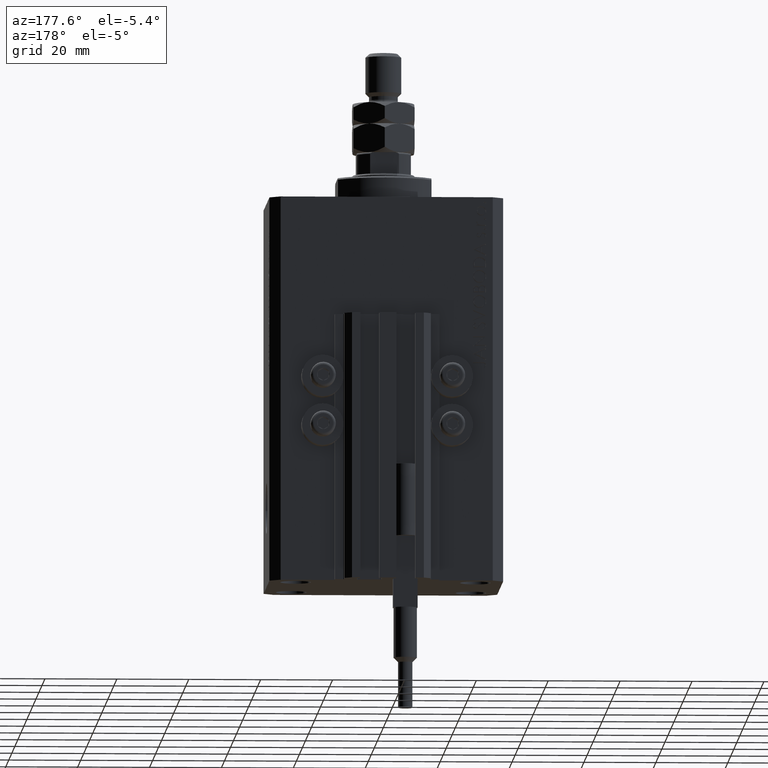
[diagram: clean part render]
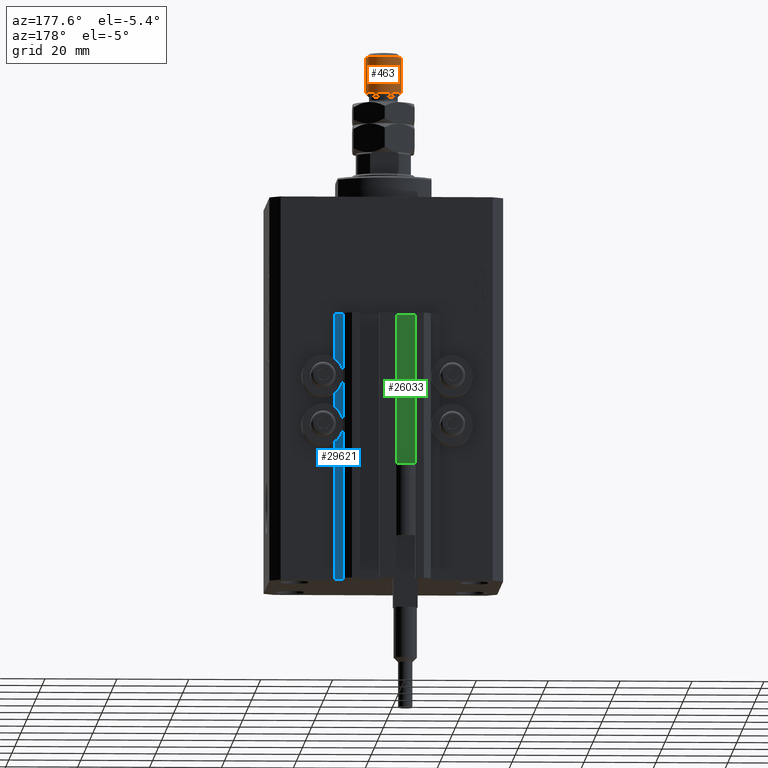
[diagram: same view with three faces highlighted in distinct colors, each labeled with its STEP entity id]
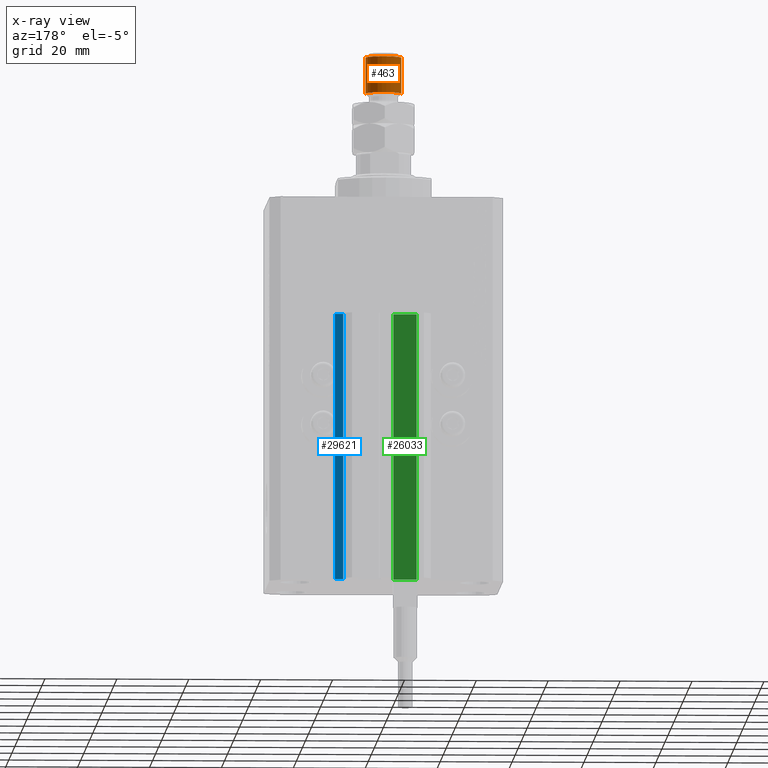
[diagram: x-ray of the same camera — body ghosted, the three highlighted faces saturated]
A machine part, auxiliary view with three faces highlighted in distinct colors.
The next image is the same camera in x-ray (body ghosted, the three faces saturated) — at least one of them is partly hidden behind the body in this view.
Their STEP definitions:

[orange] entity #463 — the highlighted cylindrical surface (edge-blend (fillet) strip) has radius 5 mm, axis along (-0, -0, -1).
#463 = ADVANCED_FACE ( 'NONE', ( #27732 ), #43000, .T. ) ;
#582 = EDGE_CURVE ( 'NONE', #14143, #31535, #3618, .T. ) ;
#911 = CARTESIAN_POINT ( 'NONE',  ( -5.000000000000000000, 0.000000000000000000, 17.00000000000000355 ) ) ;
#3618 = LINE ( 'NONE', #45229, #20893 ) ;
#5179 = DIRECTION ( 'NONE',  ( -1.000000000000000000, 0.000000000000000000, 0.000000000000000000 ) ) ;
#6138 = DIRECTION ( 'NONE',  ( -0.000000000000000000, -0.000000000000000000, 1.000000000000000000 ) ) ;
#6488 = AXIS2_PLACEMENT_3D ( 'NONE', #43250, #8934, #5179 ) ;
#7622 = DIRECTION ( 'NONE',  ( -0.000000000000000000, -0.000000000000000000, -1.000000000000000000 ) ) ;
#7648 = AXIS2_PLACEMENT_3D ( 'NONE', #38831, #7780, #27583 ) ;
#7780 = DIRECTION ( 'NONE',  ( 0.000000000000000000, 0.000000000000000000, -1.000000000000000000 ) ) ;
#8934 = DIRECTION ( 'NONE',  ( -0.000000000000000000, -0.000000000000000000, -1.000000000000000000 ) ) ;
#9679 = CARTESIAN_POINT ( 'NONE',  ( 5.000000000000000000, 6.123233995736766282E-16, 28.00000000000000000 ) ) ;
#10754 = ORIENTED_EDGE ( 'NONE', *, *, #11870, .T. ) ;
#10810 = CARTESIAN_POINT ( 'NONE',  ( 5.000000000000000000, 6.123233995736766282E-16, 26.99999999999998934 ) ) ;
#11053 = ORIENTED_EDGE ( 'NONE', *, *, #582, .F. ) ;
#11870 = EDGE_CURVE ( 'NONE', #38661, #45958, #28237, .T. ) ;
#14143 = VERTEX_POINT ( 'NONE', #42311 ) ;
#17284 = CARTESIAN_POINT ( 'NONE',  ( 5.000000000000000000, 6.123233995736766282E-16, 17.00000000000000355 ) ) ;
#20893 = VECTOR ( 'NONE', #7622, 1000.000000000000000 ) ;
#21901 = CARTESIAN_POINT ( 'NONE',  ( 0.000000000000000000, 0.000000000000000000, 17.00000000000000355 ) ) ;
#22851 = CIRCLE ( 'NONE', #7648, 5.000000000000000000 ) ;
#24139 = AXIS2_PLACEMENT_3D ( 'NONE', #21901, #6138, #48225 ) ;
#24581 = ORIENTED_EDGE ( 'NONE', *, *, #30052, .T. ) ;
#24996 = VECTOR ( 'NONE', #31975, 1000.000000000000000 ) ;
#27583 = DIRECTION ( 'NONE',  ( 1.000000000000000000, 0.000000000000000000, 0.000000000000000000 ) ) ;
#27732 = FACE_OUTER_BOUND ( 'NONE', #28163, .T. ) ;
#28163 = EDGE_LOOP ( 'NONE', ( #24581, #10754, #45573, #11053 ) ) ;
#28237 = LINE ( 'NONE', #9679, #24996 ) ;
#30052 = EDGE_CURVE ( 'NONE', #14143, #38661, #22851, .T. ) ;
#31535 = VERTEX_POINT ( 'NONE', #911 ) ;
#31975 = DIRECTION ( 'NONE',  ( -0.000000000000000000, -0.000000000000000000, -1.000000000000000000 ) ) ;
#38661 = VERTEX_POINT ( 'NONE', #10810 ) ;
#38831 = CARTESIAN_POINT ( 'NONE',  ( 0.000000000000000000, 0.000000000000000000, 26.99999999999998934 ) ) ;
#42311 = CARTESIAN_POINT ( 'NONE',  ( -5.000000000000000000, 0.000000000000000000, 26.99999999999998934 ) ) ;
#43000 = CYLINDRICAL_SURFACE ( 'NONE', #6488, 5.000000000000000000 ) ;
#43250 = CARTESIAN_POINT ( 'NONE',  ( 0.000000000000000000, 0.000000000000000000, 28.00000000000000000 ) ) ;
#45229 = CARTESIAN_POINT ( 'NONE',  ( -5.000000000000000000, 0.000000000000000000, 28.00000000000000000 ) ) ;
#45573 = ORIENTED_EDGE ( 'NONE', *, *, #47761, .T. ) ;
#45958 = VERTEX_POINT ( 'NONE', #17284 ) ;
#47761 = EDGE_CURVE ( 'NONE', #45958, #31535, #48907, .T. ) ;
#48225 = DIRECTION ( 'NONE',  ( 1.000000000000000000, 0.000000000000000000, 0.000000000000000000 ) ) ;
#48907 = CIRCLE ( 'NONE', #24139, 5.000000000000000000 ) ;

[blue] entity #29621 — the highlighted planar face has unit normal (0, 1, 0).
#939 = PLANE ( 'NONE',  #33259 ) ;
#1420 = CARTESIAN_POINT ( 'NONE',  ( 14.49999999999999822, 24.99999999999950617, -107.0000000000000000 ) ) ;
#1910 = VERTEX_POINT ( 'NONE', #24848 ) ;
#2382 = EDGE_CURVE ( 'NONE', #12589, #47809, #45251, .T. ) ;
#7644 = CARTESIAN_POINT ( 'NONE',  ( 14.49999999999999822, 24.99999999999950617, -107.0000000000000000 ) ) ;
#9452 = CARTESIAN_POINT ( 'NONE',  ( 14.49999999999999822, 24.99999999999950617, -107.0000000000000000 ) ) ;
#11755 = VECTOR ( 'NONE', #36989, 1000.000000000000000 ) ;
#12358 = EDGE_LOOP ( 'NONE', ( #12865, #48025, #23864, #37923 ) ) ;
#12589 = VERTEX_POINT ( 'NONE', #1420 ) ;
#12865 = ORIENTED_EDGE ( 'NONE', *, *, #21682, .F. ) ;
#13207 = FACE_OUTER_BOUND ( 'NONE', #12358, .T. ) ;
#16225 = CARTESIAN_POINT ( 'NONE',  ( 14.49999999999999822, 24.99999999999950617, -107.0000000000000000 ) ) ;
#19333 = CARTESIAN_POINT ( 'NONE',  ( 12.20000000000000284, 24.99999999999950617, -33.00000000000000000 ) ) ;
#20237 = DIRECTION ( 'NONE',  ( 0.000000000000000000, 1.000000000000000000, -0.000000000000000000 ) ) ;
#21682 = EDGE_CURVE ( 'NONE', #47809, #22660, #47709, .T. ) ;
#22660 = VERTEX_POINT ( 'NONE', #19333 ) ;
#23864 = ORIENTED_EDGE ( 'NONE', *, *, #33536, .T. ) ;
#24179 = LINE ( 'NONE', #40187, #33563 ) ;
#24848 = CARTESIAN_POINT ( 'NONE',  ( 12.20000000000000284, 24.99999999999950617, -107.0000000000000000 ) ) ;
#24936 = VECTOR ( 'NONE', #37951, 1000.000000000000000 ) ;
#28684 = DIRECTION ( 'NONE',  ( 0.000000000000000000, 0.000000000000000000, 1.000000000000000000 ) ) ;
#28694 = CARTESIAN_POINT ( 'NONE',  ( 14.49999999999999822, 24.99999999999950617, -33.00000000000000000 ) ) ;
#29621 = ADVANCED_FACE ( 'NONE', ( #13207 ), #939, .T. ) ;
#30322 = VECTOR ( 'NONE', #44192, 1000.000000000000000 ) ;
#32156 = CARTESIAN_POINT ( 'NONE',  ( 14.49999999999999822, 24.99999999999950617, -33.00000000000000000 ) ) ;
#33259 = AXIS2_PLACEMENT_3D ( 'NONE', #16225, #20237, #39514 ) ;
#33536 = EDGE_CURVE ( 'NONE', #12589, #1910, #43781, .T. ) ;
#33563 = VECTOR ( 'NONE', #28684, 1000.000000000000000 ) ;
#36989 = DIRECTION ( 'NONE',  ( -1.000000000000000000, 0.000000000000000000, 0.000000000000000000 ) ) ;
#37923 = ORIENTED_EDGE ( 'NONE', *, *, #40639, .T. ) ;
#37951 = DIRECTION ( 'NONE',  ( 0.000000000000000000, 0.000000000000000000, 1.000000000000000000 ) ) ;
#39514 = DIRECTION ( 'NONE',  ( 0.000000000000000000, 0.000000000000000000, 1.000000000000000000 ) ) ;
#40187 = CARTESIAN_POINT ( 'NONE',  ( 12.20000000000000284, 24.99999999999950617, -107.0000000000000000 ) ) ;
#40639 = EDGE_CURVE ( 'NONE', #1910, #22660, #24179, .T. ) ;
#43781 = LINE ( 'NONE', #9452, #11755 ) ;
#44192 = DIRECTION ( 'NONE',  ( -1.000000000000000000, 0.000000000000000000, 0.000000000000000000 ) ) ;
#45251 = LINE ( 'NONE', #7644, #24936 ) ;
#47709 = LINE ( 'NONE', #32156, #30322 ) ;
#47809 = VERTEX_POINT ( 'NONE', #28694 ) ;
#48025 = ORIENTED_EDGE ( 'NONE', *, *, #2382, .F. ) ;

[green] entity #26033 — the highlighted planar face has unit normal (0, 1, 0).
#924 = CARTESIAN_POINT ( 'NONE',  ( -8.199999999999999289, 24.49999999999949551, -107.0000000000000000 ) ) ;
#1519 = CARTESIAN_POINT ( 'NONE',  ( -1.800000000000000933, 24.49999999999949551, -107.0000000000000000 ) ) ;
#1875 = CARTESIAN_POINT ( 'NONE',  ( -1.800000000000000933, 24.49999999999949551, -107.0000000000000000 ) ) ;
#3831 = FACE_OUTER_BOUND ( 'NONE', #13503, .T. ) ;
#5042 = DIRECTION ( 'NONE',  ( 0.000000000000000000, 0.000000000000000000, 1.000000000000000000 ) ) ;
#5515 = ORIENTED_EDGE ( 'NONE', *, *, #49209, .F. ) ;
#8504 = VERTEX_POINT ( 'NONE', #32838 ) ;
#8793 = DIRECTION ( 'NONE',  ( -1.000000000000000000, 0.000000000000000000, 0.000000000000000000 ) ) ;
#10020 = LINE ( 'NONE', #13516, #29676 ) ;
#11387 = VERTEX_POINT ( 'NONE', #12312 ) ;
#12312 = CARTESIAN_POINT ( 'NONE',  ( -1.800000000000000933, 24.49999999999949551, -33.00000000000000000 ) ) ;
#13503 = EDGE_LOOP ( 'NONE', ( #5515, #39594, #46909, #14033 ) ) ;
#13516 = CARTESIAN_POINT ( 'NONE',  ( -1.800000000000000933, 24.49999999999949551, -107.0000000000000000 ) ) ;
#14033 = ORIENTED_EDGE ( 'NONE', *, *, #39417, .T. ) ;
#16049 = EDGE_CURVE ( 'NONE', #41340, #11387, #27599, .T. ) ;
#18632 = PLANE ( 'NONE',  #41147 ) ;
#19157 = EDGE_CURVE ( 'NONE', #41340, #8504, #10020, .T. ) ;
#22982 = LINE ( 'NONE', #924, #35151 ) ;
#23134 = CARTESIAN_POINT ( 'NONE',  ( -1.800000000000000933, 24.49999999999949551, -107.0000000000000000 ) ) ;
#25913 = DIRECTION ( 'NONE',  ( 0.000000000000000000, 0.000000000000000000, 1.000000000000000000 ) ) ;
#26033 = ADVANCED_FACE ( 'NONE', ( #3831 ), #18632, .T. ) ;
#26151 = DIRECTION ( 'NONE',  ( 0.000000000000000000, 1.000000000000000000, -0.000000000000000000 ) ) ;
#27599 = LINE ( 'NONE', #1519, #30689 ) ;
#29676 = VECTOR ( 'NONE', #48592, 1000.000000000000000 ) ;
#29748 = VECTOR ( 'NONE', #8793, 1000.000000000000000 ) ;
#30689 = VECTOR ( 'NONE', #5042, 1000.000000000000000 ) ;
#32838 = CARTESIAN_POINT ( 'NONE',  ( -8.199999999999999289, 24.49999999999949551, -107.0000000000000000 ) ) ;
#34587 = CARTESIAN_POINT ( 'NONE',  ( -1.800000000000000933, 24.49999999999949551, -33.00000000000000000 ) ) ;
#34744 = DIRECTION ( 'NONE',  ( 0.000000000000000000, 0.000000000000000000, 1.000000000000000000 ) ) ;
#35151 = VECTOR ( 'NONE', #34744, 1000.000000000000000 ) ;
#39417 = EDGE_CURVE ( 'NONE', #8504, #49027, #22982, .T. ) ;
#39594 = ORIENTED_EDGE ( 'NONE', *, *, #16049, .F. ) ;
#40641 = CARTESIAN_POINT ( 'NONE',  ( -8.199999999999999289, 24.49999999999949551, -33.00000000000000000 ) ) ;
#41147 = AXIS2_PLACEMENT_3D ( 'NONE', #23134, #26151, #25913 ) ;
#41340 = VERTEX_POINT ( 'NONE', #1875 ) ;
#43107 = LINE ( 'NONE', #34587, #29748 ) ;
#46909 = ORIENTED_EDGE ( 'NONE', *, *, #19157, .T. ) ;
#48592 = DIRECTION ( 'NONE',  ( -1.000000000000000000, 0.000000000000000000, 0.000000000000000000 ) ) ;
#49027 = VERTEX_POINT ( 'NONE', #40641 ) ;
#49209 = EDGE_CURVE ( 'NONE', #11387, #49027, #43107, .T. ) ;